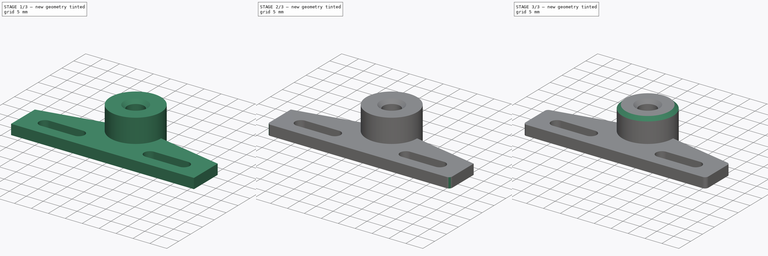
[diagram: build sequence overview — one tinted view per stage of 3, left to right]
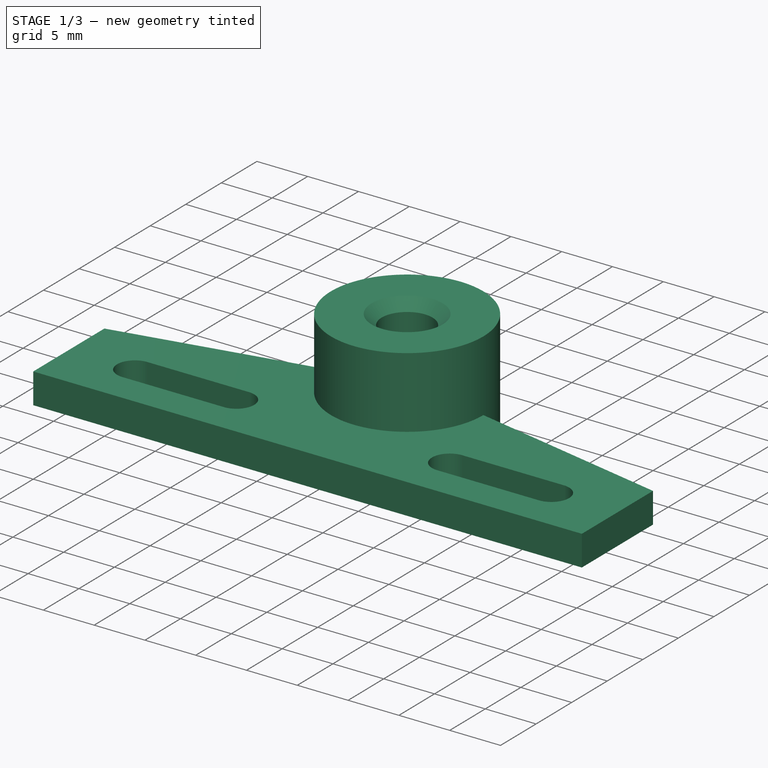
[diagram: stage 1 of 3 — iso view after this stage's code; geometry added in this stage tinted green]
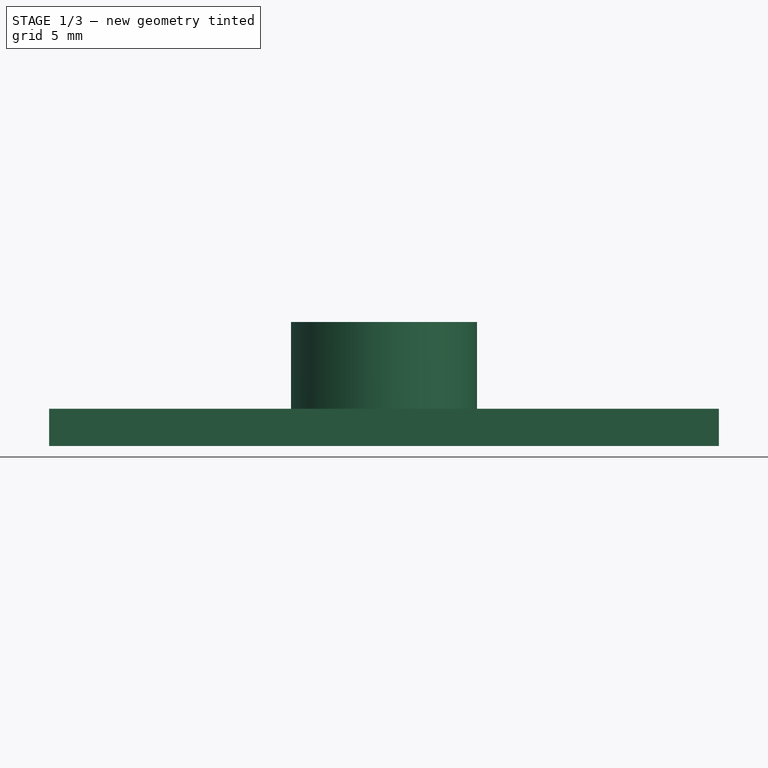
[diagram: stage 1 of 3 — front view after this stage's code; geometry added in this stage tinted green]
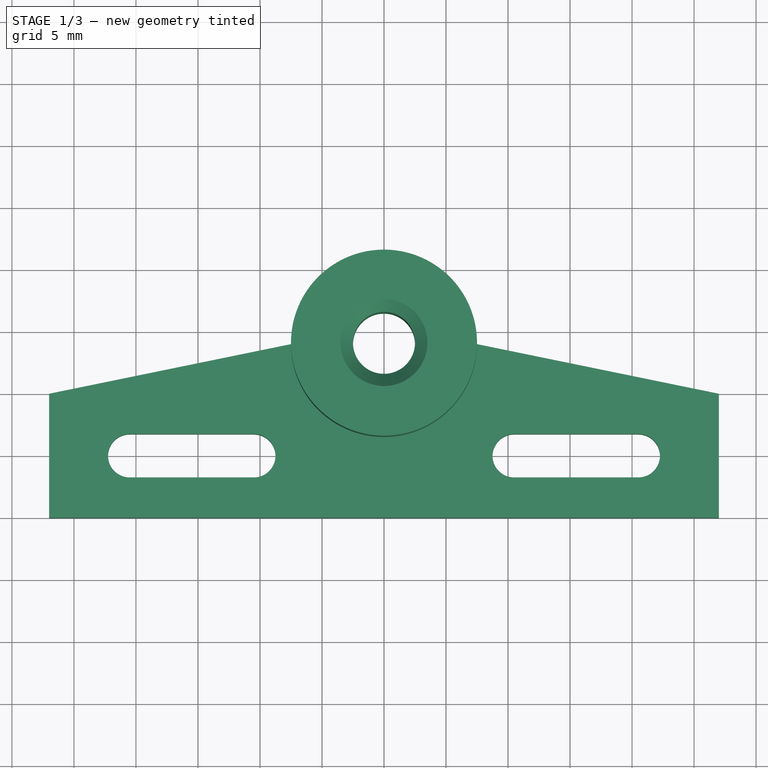
[diagram: stage 1 of 3 — top view after this stage's code; geometry added in this stage tinted green]
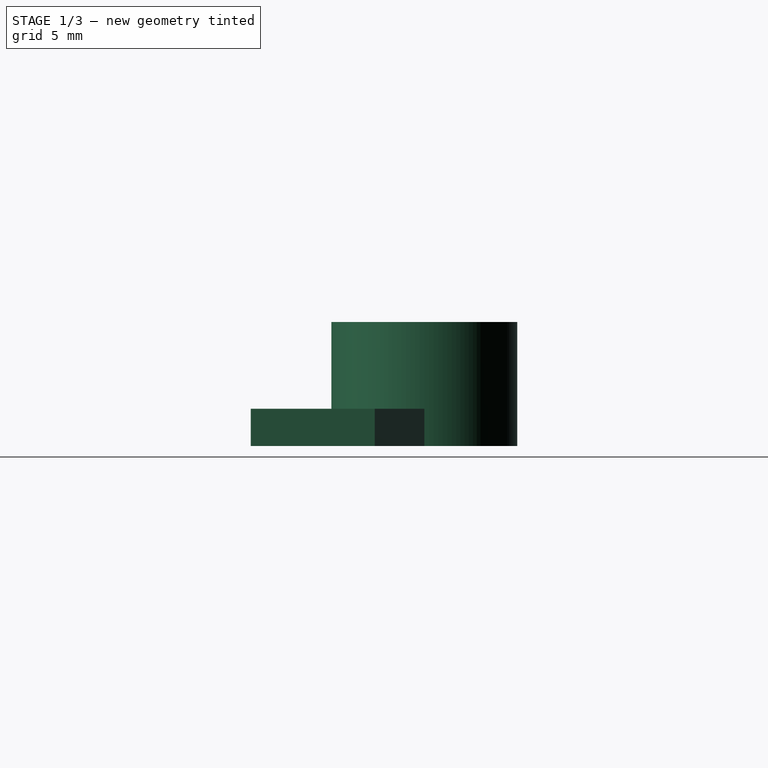
[diagram: stage 1 of 3 — right view after this stage's code; geometry added in this stage tinted green]
FCSTD DOCUMENT  (FreeCAD 0.19R24276 (Git))
Label: Z_Belt_tension_v1
License: All rights reserved
LicenseURL: http://en.wikipedia.org/wiki/All_rights_reserved
objects: PartDesign::Fillet×4, Sketcher::SketchObject×2, PartDesign::Pad×2, PartDesign::Chamfer×2, PartDesign::Body×1
note: 19 computed .brp shape members not serialized (recipe doc carries the construction recipe); baked Part::Feature solids carry a one-line shape summary decoded from their .brp

FEATURE [Sketcher::SketchObject] Sketch
  FullyConstrained = false
  MapMode = 5
  Support = -> [XY_Plane]
  sketch-geometry (20):
    g0: LineSegment StartX=-27 StartY=-5 StartZ=0 EndX=27 EndY=-5 EndZ=0
    g1: LineSegment StartX=27 StartY=-5 StartZ=0 EndX=27 EndY=5 EndZ=0
    g2: LineSegment StartX=27 StartY=5 StartZ=0 EndX=-27 EndY=5 EndZ=0
    g3: LineSegment StartX=-27 StartY=5 StartZ=0 EndX=-27 EndY=-5 EndZ=0
    g4: ArcOfCircle CenterX=-20.5 CenterY=0 CenterZ=0 NormalX=0 NormalY=0 NormalZ=1 AngleXU=0 Radius=1.75 StartAngle=1.5708 EndAngle=4.71239
    g5: ArcOfCircle CenterX=-10.5 CenterY=0 CenterZ=0 NormalX=0 NormalY=0 NormalZ=1 AngleXU=0 Radius=1.75 StartAngle=4.71239 EndAngle=7.85398
    g6: LineSegment StartX=-20.5 StartY=-1.75 StartZ=0 EndX=-10.5 EndY=-1.75 EndZ=0
    g7: LineSegment StartX=-20.5 StartY=1.75 StartZ=0 EndX=-10.5 EndY=1.75 EndZ=0
    g8: LineSegment StartX=-15.5 StartY=-2e-16 StartZ=0 EndX=-15.5 EndY=-29.0503 EndZ=0
    g9: Circle CenterX=0 CenterY=9 CenterZ=0 NormalX=0 NormalY=0 NormalZ=1 AngleXU=0 Radius=2.5
    g10: LineSegment StartX=0 StartY=0 StartZ=0 EndX=0 EndY=9 EndZ=0
    g11: ArcOfCircle CenterX=20.5 CenterY=0 CenterZ=0 NormalX=0 NormalY=0 NormalZ=1 AngleXU=0 Radius=1.75 StartAngle=4.71239 EndAngle=7.85398
    g12: ArcOfCircle CenterX=10.5 CenterY=0 CenterZ=0 NormalX=0 NormalY=0 NormalZ=1 AngleXU=0 Radius=1.75 StartAngle=1.5708 EndAngle=4.71239
    g13: LineSegment StartX=20.5 StartY=-1.75 StartZ=0 EndX=10.5 EndY=-1.75 EndZ=0
    g14: LineSegment StartX=20.5 StartY=1.75 StartZ=0 EndX=10.5 EndY=1.75 EndZ=0
    g15: ArcOfCircle CenterX=0 CenterY=9 CenterZ=0 NormalX=0 NormalY=0 NormalZ=1 AngleXU=0 Radius=7.5 StartAngle=0 EndAngle=3.14159
    g16: LineSegment StartX=0 StartY=9 StartZ=0 EndX=-7.5 EndY=9 EndZ=0
    g17: LineSegment StartX=0 StartY=9 StartZ=0 EndX=7.5 EndY=9 EndZ=0
    g18: LineSegment StartX=-27 StartY=5 StartZ=0 EndX=-7.5 EndY=9 EndZ=0
    g19: LineSegment StartX=7.5 StartY=9 StartZ=0 EndX=27 EndY=5 EndZ=0
  constraints (46):
    c: Coincident(g0,g1)
    c: Coincident(g1,g2)
    c: Coincident(g2,g3)
    c: Coincident(g3,g0)
    c: Horizontal(g0)
    c: Horizontal(g2)
    c: Vertical(g1)
    c: Vertical(g3)
    c: Symmetric(g2,g0,g-1)
    c: Tangent(g4,g7) = 1.5708
    c: Tangent(g4,g6) = -1.5708
    c: Tangent(g6,g5) = -1.5708
    c: Tangent(g7,g5) = 1.5708
    c: Horizontal(g6)
    c: Equal(g4,g5)
    c: PointOnObject(g4,g-1)
    c: Diameter(g5) = 3.5
    c: DistanceX(g4,g5) = 10
    c: Vertical(g8)
    c: Symmetric(g4,g5,g8)
    c: DistanceX(g8,g-1) = 15.5
    c: DistanceX(g0,g-1) = 27
    c: DistanceY(g0,g4) = 5
    c: Diameter(g9) = 5
    c: DistanceY(g4,g9) = 9
    c: Coincident(g10,g-1)
    c: PointOnObject(g10,g-2)
    c: Tangent(g9,g10) = -1.5708
    c: Tangent(g11,g14) = -1.5708
    c: Tangent(g11,g13) = 1.5708
    c: Tangent(g13,g12) = 1.5708
    c: Tangent(g14,g12) = -1.5708
    c: Equal(g11,g12)
    c: Diameter(g12) = 3.5
    c: Coincident(g15,g9)
    c: Diameter(g15) = 15
    c: Coincident(g16,g9)
    c: Horizontal(g16)
    c: Coincident(g17,g9)
    c: Horizontal(g17)
    c: Coincident(g15,g17)
    c: Coincident(g15,g16)
    c: Coincident(g18,g3)
    c: Coincident(g18,g15)
    c: Coincident(g19,g15)
    c: Coincident(g19,g1)
FEATURE [PartDesign::Pad] Pad
  Direction = (1,1,1)
  Length = 3
  Length2 = 100
  Profile = -> Sketch
  Type = 0
FEATURE [Sketcher::SketchObject] Sketch001
  FullyConstrained = true
  MapMode = 5
  Placement = pos=(0,0,3) rot=(0,0,1;0rad)
  Support = -> [Pad]
  sketch-geometry (3):
    g0: LineSegment StartX=0 StartY=0 StartZ=0 EndX=0 EndY=9 EndZ=0
    g1: Circle CenterX=0 CenterY=9 CenterZ=0 NormalX=0 NormalY=0 NormalZ=1 AngleXU=0 Radius=2.5
    g2: Circle CenterX=0 CenterY=9 CenterZ=0 NormalX=0 NormalY=0 NormalZ=1 AngleXU=0 Radius=7.5
  constraints (7):
    c: Coincident(g0,g-1)
    c: PointOnObject(g0,g-2)
    c: DistanceY(g0,g0) = 9
    c: Coincident(g1,g0)
    c: Coincident(g2,g1)
    c: Diameter(g1) = 5
    c: Diameter(g2) = 15
FEATURE [PartDesign::Pad] Pad001
  BaseFeature = -> Pad
  Direction = (1,1,1)
  Length = 7
  Length2 = 100
  Profile = -> Sketch001
  Type = 0
FEATURE [PartDesign::Chamfer] Chamfer
  Angle = 45
  Base = -> Pad001 [Edge49]
  BaseFeature = -> Pad001
  ChamferType = 0
  FlipDirection = false
  Size = 1
  Size2 = 1
  SupportTransform = false
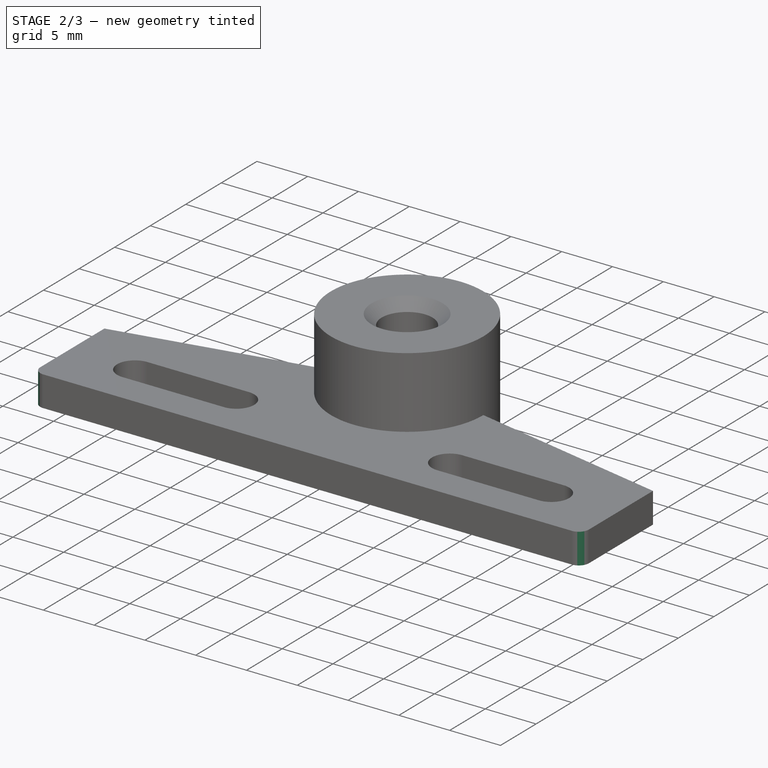
[diagram: stage 2 of 3 — iso view after this stage's code; geometry added in this stage tinted green]
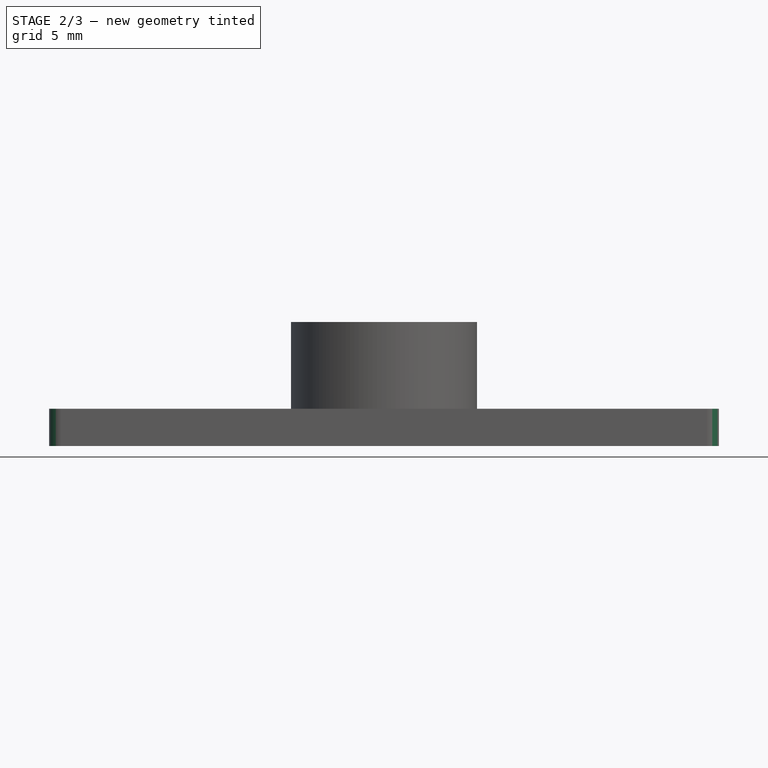
[diagram: stage 2 of 3 — front view after this stage's code; geometry added in this stage tinted green]
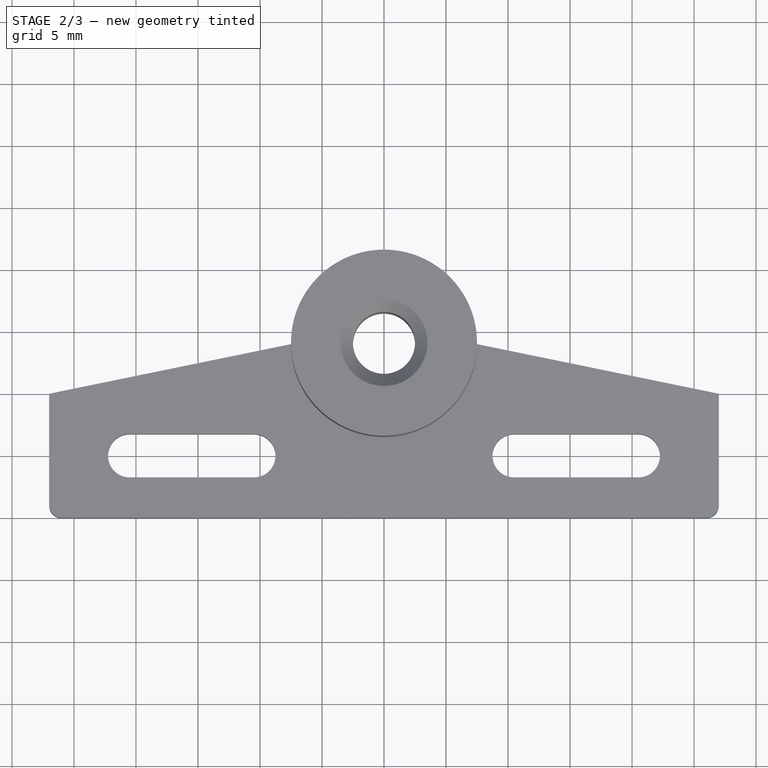
[diagram: stage 2 of 3 — top view after this stage's code; geometry added in this stage tinted green]
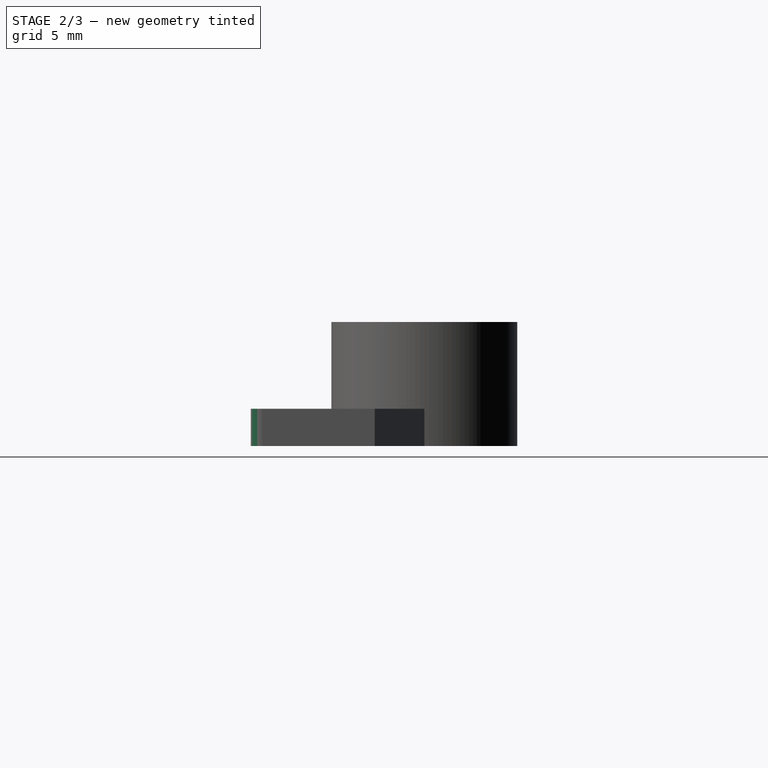
[diagram: stage 2 of 3 — right view after this stage's code; geometry added in this stage tinted green]
FEATURE [PartDesign::Fillet] Fillet
  Base = -> Chamfer [Edge43]
  BaseFeature = -> Chamfer
  Radius = 1
  SupportTransform = false
FEATURE [PartDesign::Fillet] Fillet001
  Base = -> Fillet [Edge24]
  BaseFeature = -> Fillet
  Radius = 1
  SupportTransform = false
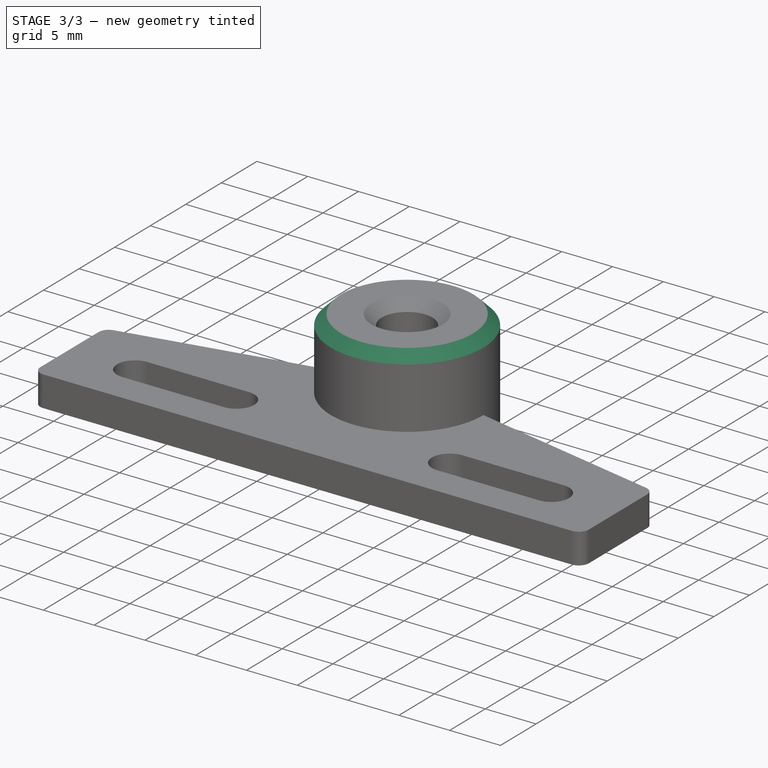
[diagram: stage 3 of 3 — iso view after this stage's code; geometry added in this stage tinted green]
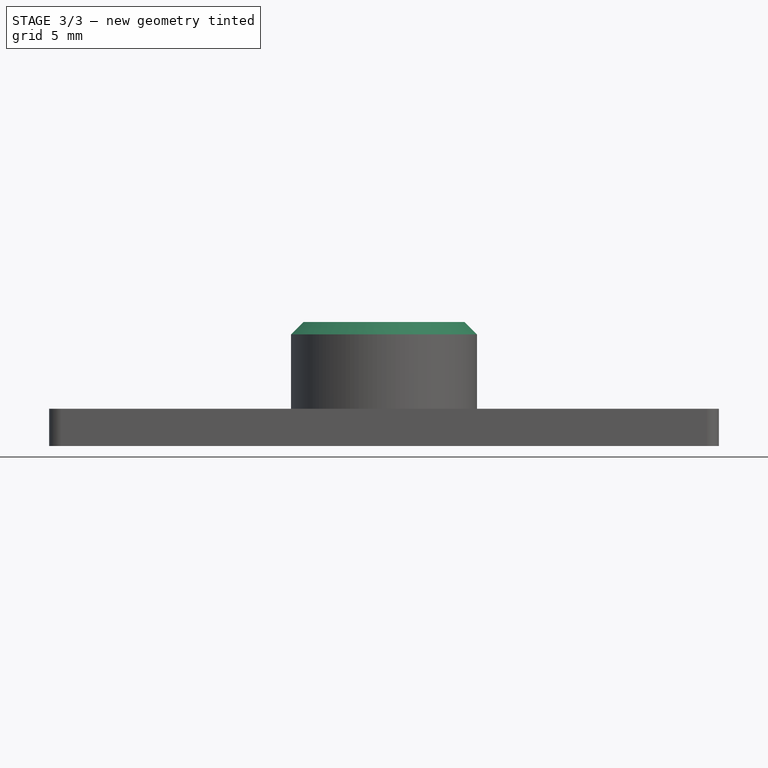
[diagram: stage 3 of 3 — front view after this stage's code; geometry added in this stage tinted green]
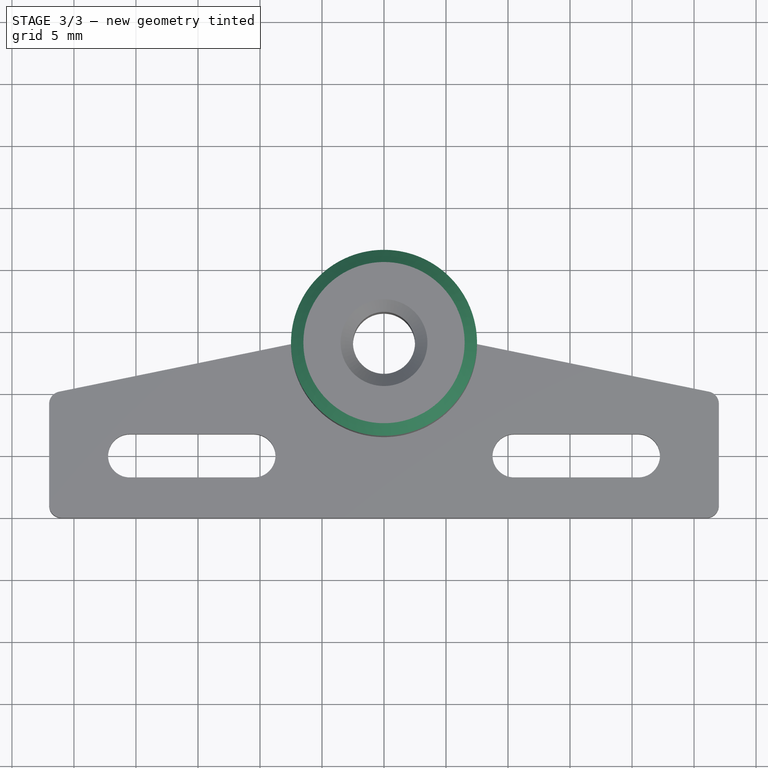
[diagram: stage 3 of 3 — top view after this stage's code; geometry added in this stage tinted green]
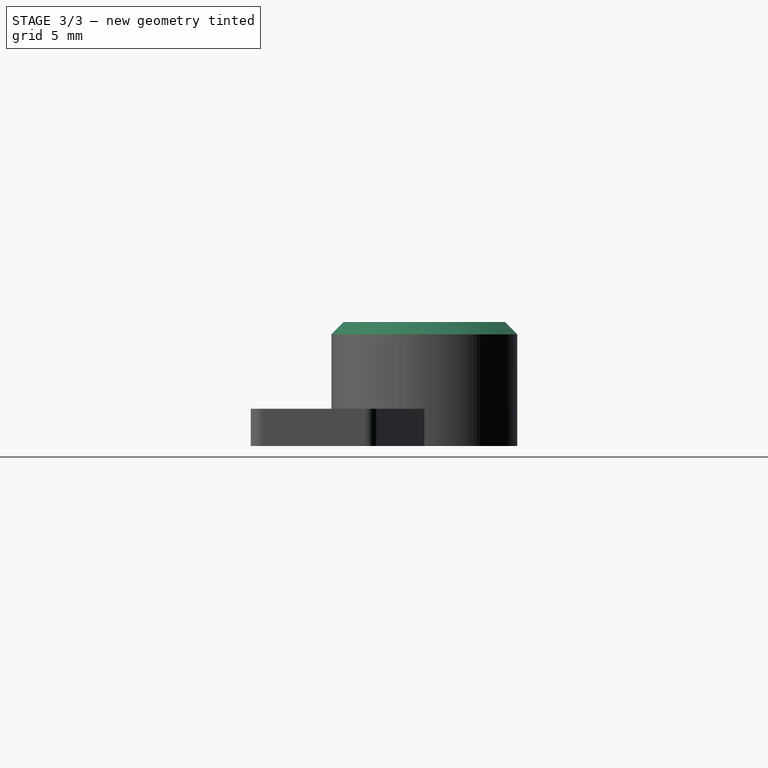
[diagram: stage 3 of 3 — right view after this stage's code; geometry added in this stage tinted green]
FEATURE [PartDesign::Fillet] Fillet002
  Base = -> Fillet001 [Edge27]
  BaseFeature = -> Fillet001
  Radius = 1
  SupportTransform = false
FEATURE [PartDesign::Fillet] Fillet003
  Base = -> Fillet002 [Edge34]
  BaseFeature = -> Fillet002
  Radius = 1
  SupportTransform = false
FEATURE [PartDesign::Chamfer] Chamfer001
  Angle = 45
  Base = -> Fillet003 [Edge26]
  BaseFeature = -> Fillet003
  ChamferType = 0
  FlipDirection = false
  Size = 1
  Size2 = 1
  SupportTransform = false
FEATURE [PartDesign::Body] Body
  Group = -> [Sketch,Pad,Sketch001,Pad001,Chamfer,Fillet,Fillet001,Fillet002,Fillet003,Chamfer001]
  Origin = -> Origin
  Tip = -> Chamfer001
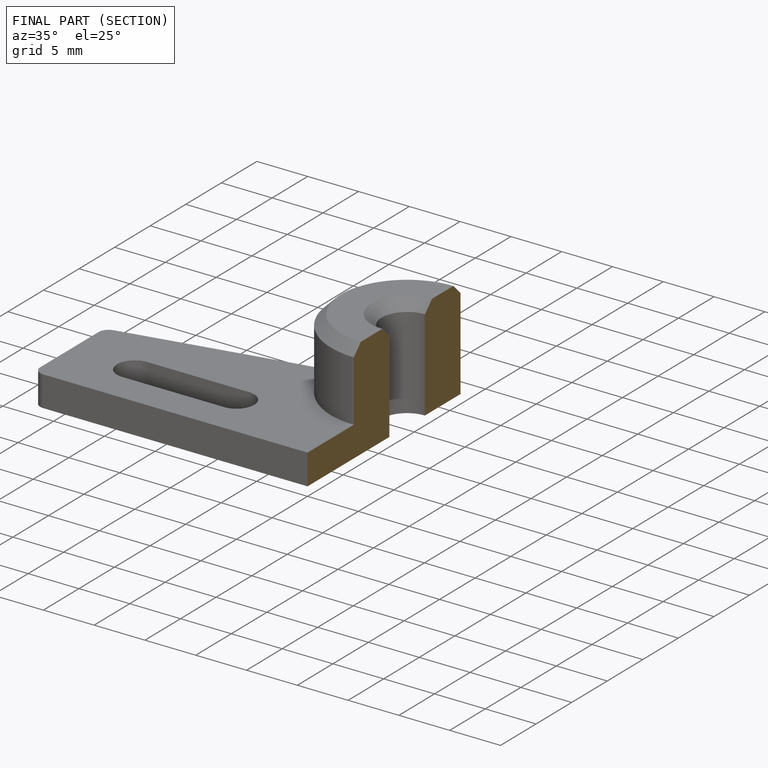
[diagram: finished part — half-section view (interior)]
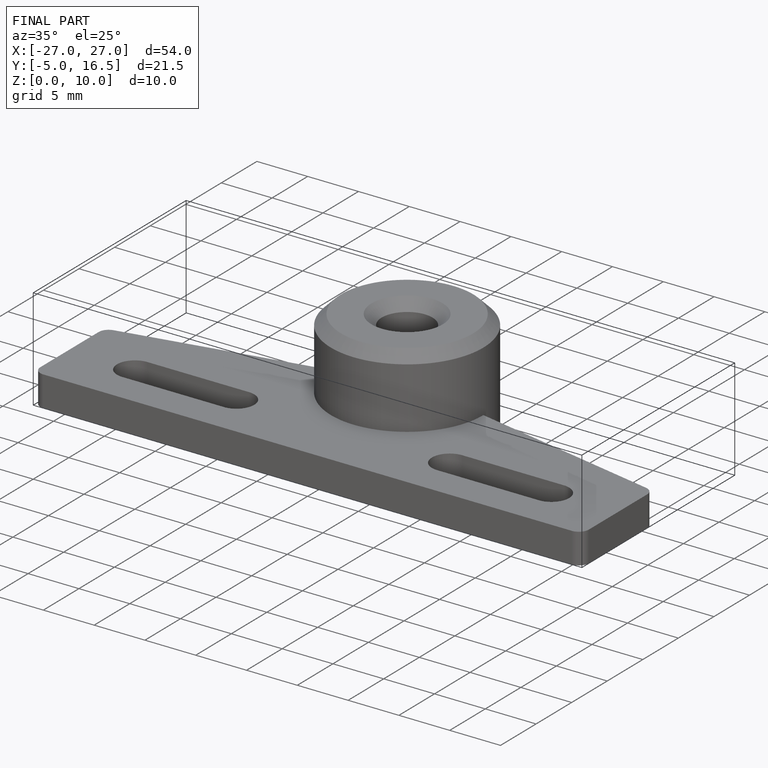
[diagram: finished part — iso view with bounding-box wireframe]
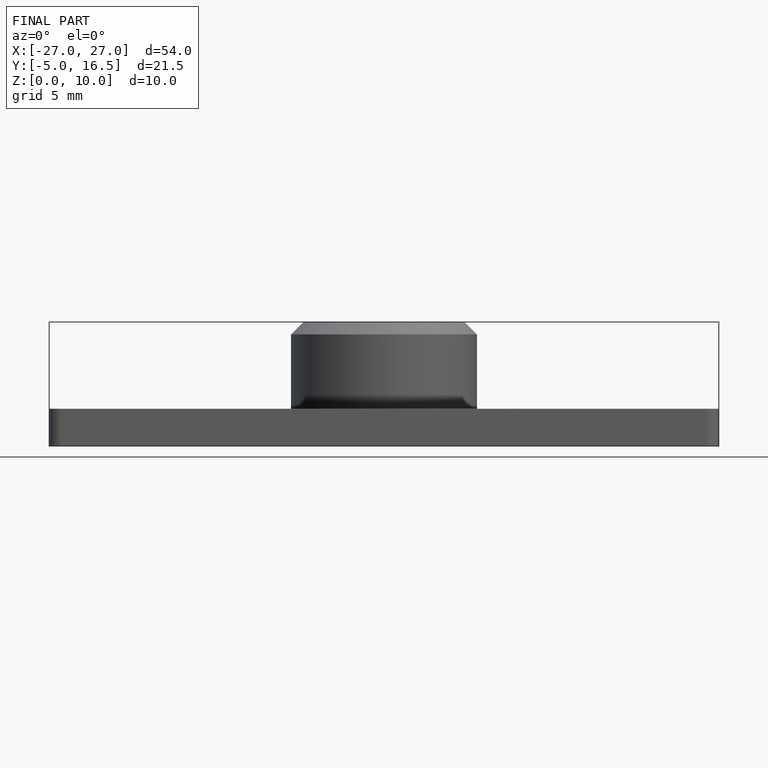
[diagram: finished part — front view with bounding-box wireframe]
